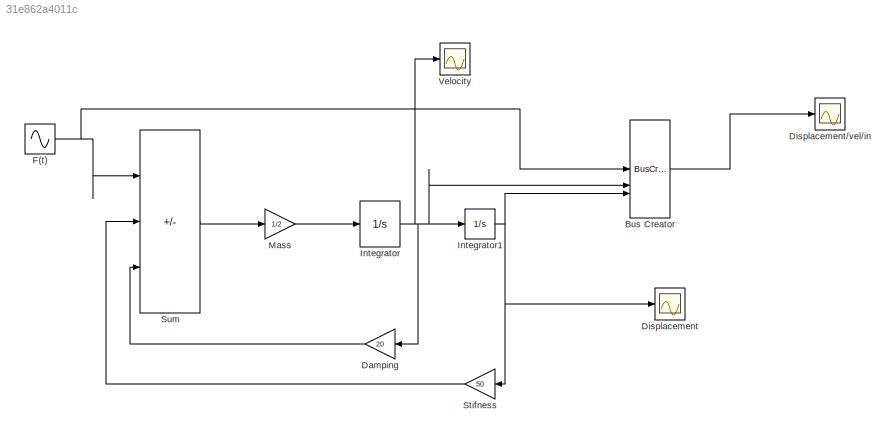
MODEL slx_31e862a4011c
KIND model
CONFIG AbsTol = auto
CONFIG EnableMultiTasking = off
CONFIG FixedStep = auto
CONFIG MaxStep = auto
CONFIG MinStep = auto
CONFIG RelTol = 1e-3
CONFIG SampleTimeConstraint = Unconstrained
CONFIG SolverName = VariableStepAuto
CONFIG StartTime = 0.0
CONFIG StopTime = 10.0
BLOCK [BusCreator] Bus Creator
  DisplayOption = bar
  InheritFromInputs = on
  Inputs = 3
BLOCK [Gain] Damping
  Gain = 20
BLOCK [Scope] Displacement
  Floating = off
  NumInputPorts = 1
  ScopeSpecificationString = Simulink.scopes.TimeScopeBlockCfg('CurrentConfiguration', extmgr.ConfigurationSet(extmgr.Configuration('Core','General UI',true),extmgr.Configuration('Core','Source UI',true),extmgr.Configuration('Sources','WiredSimulink',true),extmgr.Configuration('Visuals','Time Domain',true,'SerializedDisplays',{struct('MinYLimReal','-0.02403','MaxYLimReal','0.02404','YLabelReal','','MinYLimMag','0.00000','MaxY...<+1331ch>
BLOCK [Scope] Displacement//vel//in
  Floating = off
  NumInputPorts = 1
  ScopeSpecificationString = Simulink.scopes.TimeScopeBlockCfg('CurrentConfiguration', extmgr.ConfigurationSet(extmgr.Configuration('Core','General UI',true),extmgr.Configuration('Core','Source UI',true),extmgr.Configuration('Sources','WiredSimulink',true,'DataLoggingVariableName','ScopeData2'),extmgr.Configuration('Visuals','Time Domain',true,'SerializedDisplays',{struct('MinYLimReal','-1.2497','MaxYLimReal','1.24986','YLabe...<+1419ch>
BLOCK [Sin] F(t)
  SampleTime = 0
BLOCK [Integrator] Integrator
BLOCK [Integrator] Integrator1
BLOCK [Gain] Mass
  Gain = 1/2
BLOCK [Gain] Stifness
  Gain = 50
BLOCK [Sum] Sum
  IconShape = rectangular
  Inputs = |+--
BLOCK [Scope] Velocity
  Floating = off
  NumInputPorts = 1
  ScopeSpecificationString = Simulink.scopes.TimeScopeBlockCfg('CurrentConfiguration', extmgr.ConfigurationSet(extmgr.Configuration('Core','General UI',true),extmgr.Configuration('Core','Source UI',true),extmgr.Configuration('Sources','WiredSimulink',true,'DataLoggingVariableName','ScopeData1'),extmgr.Configuration('Visuals','Time Domain',true,'SerializedDisplays',{struct('MinYLimReal','-0.02401','MaxYLimReal','0.02399','YLab...<+1400ch>
LINE Bus Creator:1 -> Displacement//vel//in:1
LINE Damping:1 -> Sum:3
NET F(t):1 -> Bus Creator:1, Sum:1
NET Integrator1:1 -> Bus Creator:3, Displacement:1, Stifness:1
NET Integrator:1 -> Bus Creator:2, Damping:1, Integrator1:1, Velocity:1
LINE Mass:1 -> Integrator:1
LINE Stifness:1 -> Sum:2
LINE Sum:1 -> Mass:1
note: NET lines group one-source signal fan-out (src -> all destinations, sorted); 1:1 wires keep LINE
